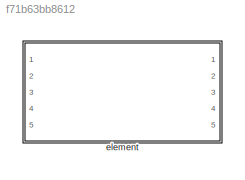
MODEL slx_f71b63bb8612
KIND library
CONFIG AbsTol = auto
CONFIG EnableMultiTasking = off
CONFIG FixedStep = auto
CONFIG MaxStep = auto
CONFIG MinStep = auto
CONFIG RelTol = 1e-3
CONFIG SampleTimeConstraint = Unconstrained
CONFIG SolverName = VariableStepAuto
CONFIG StartTime = 0.0
CONFIG StopTime = 10.0
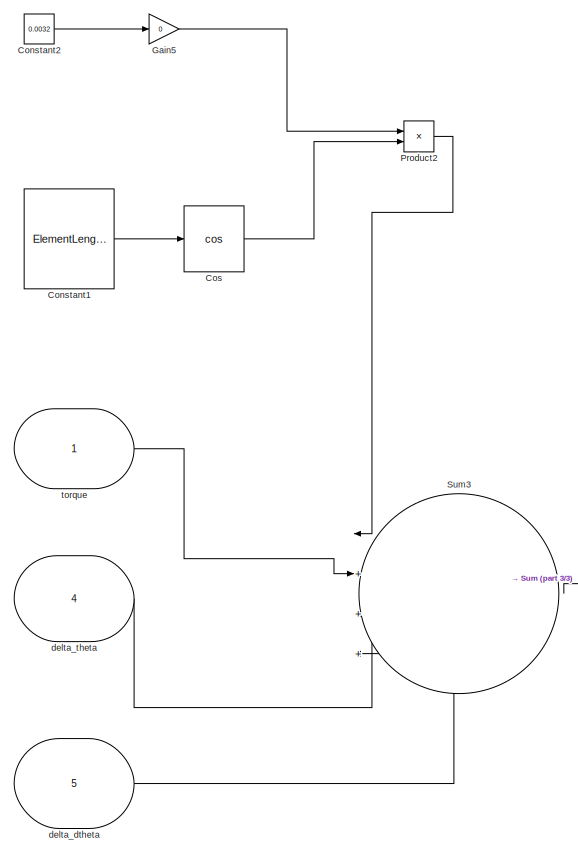
[diagram: element - part 1/3, top left region]
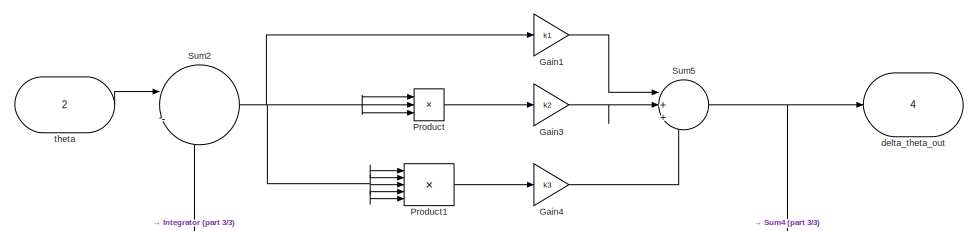
[diagram: element - part 2/3, top right region]
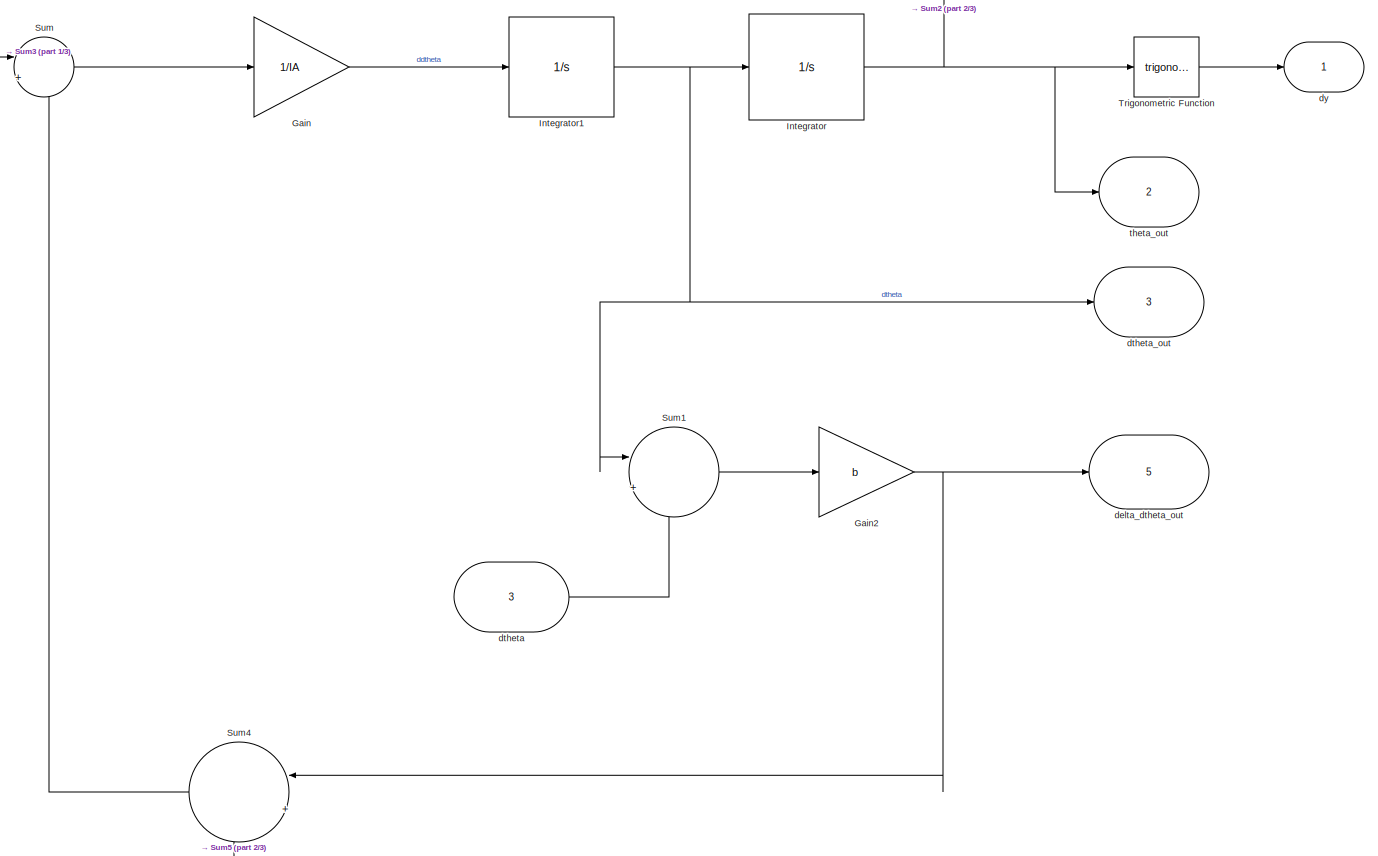
[diagram: element - part 3/3, bottom center region]
BLOCK [SubSystem] element
  Ports = [5, 5]
  RequestExecContextInheritance = off
BLOCK [Constant] element/Constant1
  Value = ElementLength/2
BLOCK [Constant] element/Constant2
  Value = 0.0032
BLOCK [Trigonometry] element/Cos
  Operator = cos
  Ports = [1, 1]
BLOCK [Gain] element/Gain
  Gain = 1/IA
BLOCK [Gain] element/Gain1
  Gain = k1
BLOCK [Gain] element/Gain2
  Gain = b
BLOCK [Gain] element/Gain3
  Gain = k2
BLOCK [Gain] element/Gain4
  Gain = k3
BLOCK [Gain] element/Gain5
  Gain = 0
BLOCK [Integrator] element/Integrator
  Ports = [1, 1]
BLOCK [Integrator] element/Integrator1
  Ports = [1, 1]
BLOCK [Product] element/Product
  Inputs = 3
  Ports = [3, 1]
BLOCK [Product] element/Product1
  Inputs = 5
  Ports = [5, 1]
BLOCK [Product] element/Product2
  Ports = [2, 1]
BLOCK [Sum] element/Sum
  Inputs = |+-
  Ports = [2, 1]
BLOCK [Sum] element/Sum1
  Inputs = |+-
  Ports = [2, 1]
BLOCK [Sum] element/Sum2
  Inputs = |-+
  Ports = [2, 1]
BLOCK [Sum] element/Sum3
  Inputs = |++++
  Ports = [4, 1]
BLOCK [Sum] element/Sum4
  Inputs = |++
  Ports = [2, 1]
BLOCK [Sum] element/Sum5
  Inputs = |+++
  Ports = [3, 1]
BLOCK [Trigonometry] element/Trigonometric Function
  Ports = [1, 1]
BLOCK [Inport] element/delta_dtheta
  Port = 5
BLOCK [Outport] element/delta_dtheta_out
  Port = 5
BLOCK [Inport] element/delta_theta
  Port = 4
BLOCK [Outport] element/delta_theta_out
  Port = 4
BLOCK [Inport] element/dtheta
  Port = 3
BLOCK [Outport] element/dtheta_out
  Port = 3
BLOCK [Outport] element/dy
BLOCK [Inport] element/theta
  Port = 2
BLOCK [Outport] element/theta_out
  Port = 2
BLOCK [Inport] element/torque
LINE element/Constant1:1 -> element/Cos:1
LINE element/Constant2:1 -> element/Gain5:1
LINE element/Cos:1 -> element/Product2:2
LINE element/Gain1:1 -> element/Sum5:1
NET element/Gain2:1 -> element/Sum4:1, element/delta_dtheta_out:1
LINE element/Gain3:1 -> element/Sum5:2
LINE element/Gain4:1 -> element/Sum5:3
LINE element/Gain5:1 -> element/Product2:1
LINE element/Gain:1 -> element/Integrator1:1
NET element/Integrator1:1 -> element/Integrator:1, element/Sum1:1, element/dtheta_out:1
NET element/Integrator:1 -> element/Sum2:2, element/Trigonometric Function:1, element/theta_out:1
LINE element/Product1:1 -> element/Gain4:1
LINE element/Product2:1 -> element/Sum3:1
LINE element/Product:1 -> element/Gain3:1
LINE element/Sum1:1 -> element/Gain2:1
NET element/Sum2:1 -> element/Gain1:1, element/Product1:1, element/Product1:2, element/Product1:3, element/Product1:4, element/Product1:5, element/Product:1, element/Product:2, element/Product:3
LINE element/Sum3:1 -> element/Sum:1
LINE element/Sum4:1 -> element/Sum:2
NET element/Sum5:1 -> element/Sum4:2, element/delta_theta_out:1
LINE element/Sum:1 -> element/Gain:1
LINE element/Trigonometric Function:1 -> element/dy:1
LINE element/delta_dtheta:1 -> element/Sum3:4
LINE element/delta_theta:1 -> element/Sum3:3
LINE element/dtheta:1 -> element/Sum1:2
LINE element/theta:1 -> element/Sum2:1
LINE element/torque:1 -> element/Sum3:2
note: NET lines group one-source signal fan-out (src -> all destinations, sorted); 1:1 wires keep LINE
